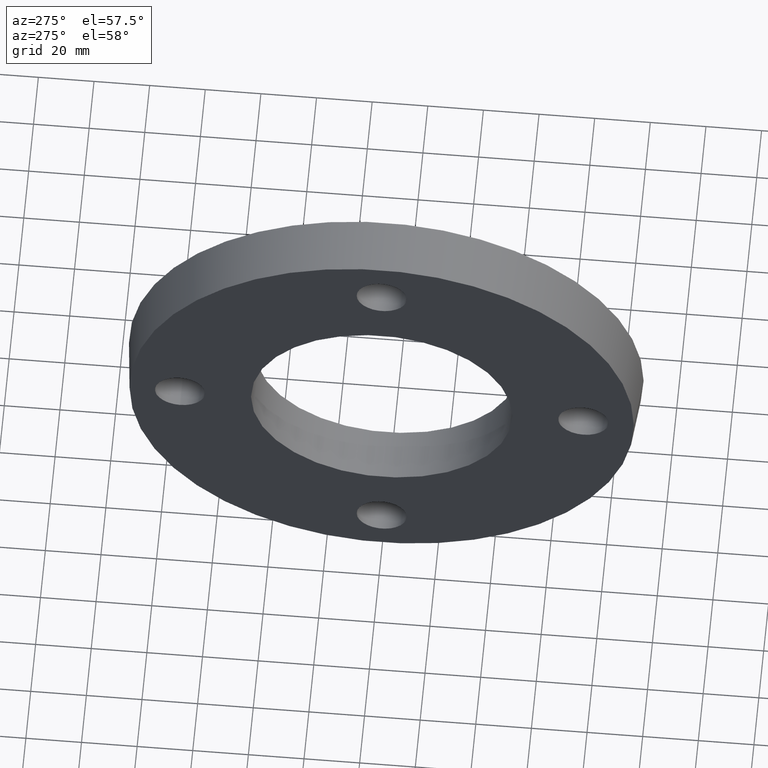
[diagram: clean part render]
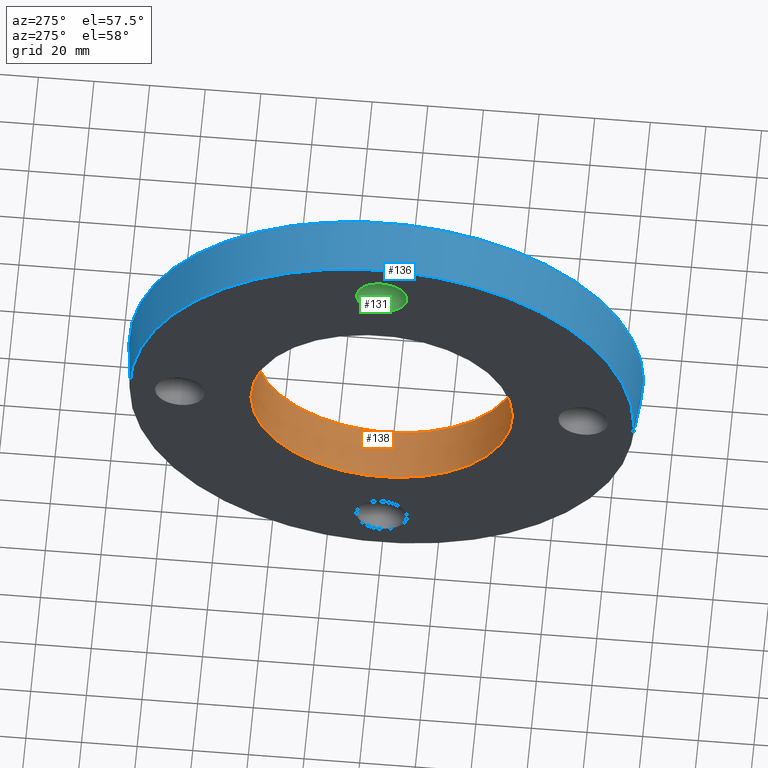
[diagram: same view with three faces highlighted in distinct colors, each labeled with its STEP entity id]
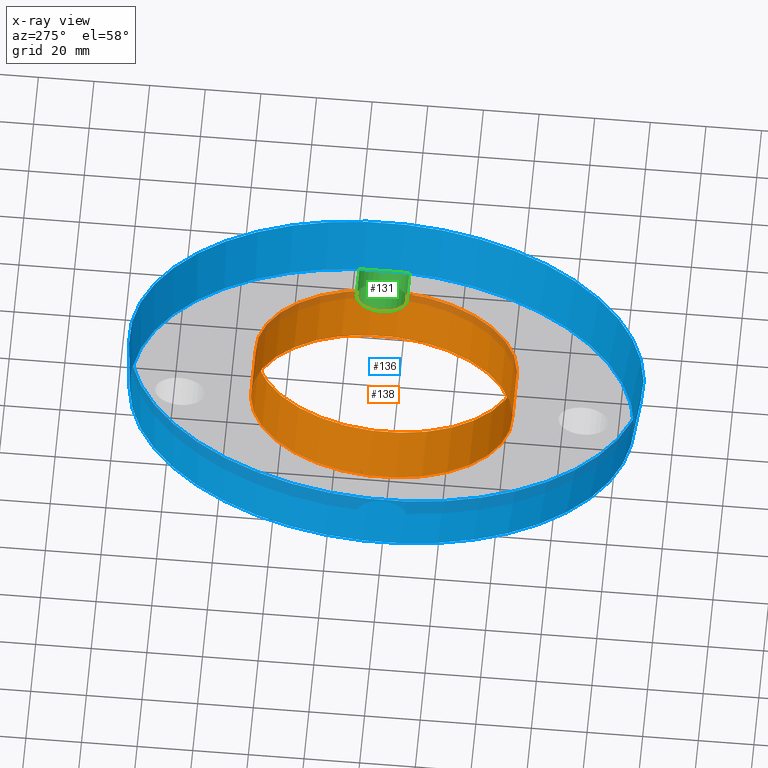
[diagram: x-ray of the same camera — body ghosted, the three highlighted faces saturated]
A machine part, auxiliary view with three faces highlighted in distinct colors.
The next image is the same camera in x-ray (body ghosted, the three faces saturated) — at least one of them is partly hidden behind the body in this view.
Their STEP definitions:

[orange] entity #138 — the highlighted cylindrical surface (bore or boss wall) has radius 47 mm, axis along (-1, 0, 0).
#33=FACE_BOUND('',#65,.T.);
#41=FACE_OUTER_BOUND('',#64,.T.);
#64=EDGE_LOOP('',(#124));
#65=EDGE_LOOP('',(#125));
#75=CIRCLE('',#155,47.);
#77=CIRCLE('',#159,47.);
#87=VERTEX_POINT('',#227);
#89=VERTEX_POINT('',#233);
#99=EDGE_CURVE('',#87,#87,#75,.T.);
#101=EDGE_CURVE('',#89,#89,#77,.T.);
#124=ORIENTED_EDGE('',*,*,#99,.F.);
#125=ORIENTED_EDGE('',*,*,#101,.T.);
#130=CYLINDRICAL_SURFACE('',#160,47.);
#138=ADVANCED_FACE('',(#41,#33),#130,.F.);
#155=AXIS2_PLACEMENT_3D('',#228,#191,#192);
#159=AXIS2_PLACEMENT_3D('',#234,#199,#200);
#160=AXIS2_PLACEMENT_3D('',#235,#201,#202);
#191=DIRECTION('center_axis',(-1.,0.,0.));
#192=DIRECTION('ref_axis',(0.,0.,1.));
#199=DIRECTION('center_axis',(-1.,0.,0.));
#200=DIRECTION('ref_axis',(0.,0.,1.));
#201=DIRECTION('center_axis',(-1.,0.,0.));
#202=DIRECTION('ref_axis',(0.,-1.,0.));
#227=CARTESIAN_POINT('',(9.5,-47.,0.));
#228=CARTESIAN_POINT('Origin',(9.5,0.,0.));
#233=CARTESIAN_POINT('',(-9.5,-47.,0.));
#234=CARTESIAN_POINT('Origin',(-9.5,0.,0.));
#235=CARTESIAN_POINT('Origin',(0.,0.,0.));

[blue] entity #136 — the highlighted conical surface has half-angle 5.561 deg.
#15=CONICAL_SURFACE('',#156,91.575,5.56126905673246);
#27=FACE_BOUND('',#57,.T.);
#39=FACE_OUTER_BOUND('',#56,.T.);
#56=EDGE_LOOP('',(#116));
#57=EDGE_LOOP('',(#117));
#74=CIRCLE('',#154,92.5);
#76=CIRCLE('',#157,90.65);
#86=VERTEX_POINT('',#225);
#88=VERTEX_POINT('',#230);
#98=EDGE_CURVE('',#86,#86,#74,.T.);
#100=EDGE_CURVE('',#88,#88,#76,.T.);
#116=ORIENTED_EDGE('',*,*,#100,.F.);
#117=ORIENTED_EDGE('',*,*,#98,.T.);
#136=ADVANCED_FACE('',(#39,#27),#15,.T.);
#154=AXIS2_PLACEMENT_3D('',#226,#189,#190);
#156=AXIS2_PLACEMENT_3D('',#229,#193,#194);
#157=AXIS2_PLACEMENT_3D('',#231,#195,#196);
#189=DIRECTION('center_axis',(-1.,0.,0.));
#190=DIRECTION('ref_axis',(0.,0.,1.));
#193=DIRECTION('center_axis',(1.,0.,0.));
#194=DIRECTION('ref_axis',(0.,-1.,0.));
#195=DIRECTION('center_axis',(-1.,0.,0.));
#196=DIRECTION('ref_axis',(0.,0.,1.));
#225=CARTESIAN_POINT('',(9.5,-92.5,0.));
#226=CARTESIAN_POINT('Origin',(9.5,0.,0.));
#229=CARTESIAN_POINT('Origin',(5.55111512312578E-15,0.,0.));
#230=CARTESIAN_POINT('',(-9.49999999999999,-90.65,0.));
#231=CARTESIAN_POINT('Origin',(-9.49999999999999,0.,0.));

[green] entity #131 — the highlighted cylindrical surface (bore or boss wall) has radius 9 mm, axis along (-1, 0, 0).
#18=FACE_BOUND('',#43,.T.);
#34=FACE_OUTER_BOUND('',#42,.T.);
#42=EDGE_LOOP('',(#102));
#43=EDGE_LOOP('',(#103));
#66=CIRCLE('',#142,9.);
#67=CIRCLE('',#143,9.);
#78=VERTEX_POINT('',#205);
#79=VERTEX_POINT('',#207);
#90=EDGE_CURVE('',#78,#78,#66,.T.);
#91=EDGE_CURVE('',#79,#79,#67,.T.);
#102=ORIENTED_EDGE('',*,*,#90,.F.);
#103=ORIENTED_EDGE('',*,*,#91,.F.);
#126=CYLINDRICAL_SURFACE('',#141,9.);
#131=ADVANCED_FACE('',(#34,#18),#126,.F.);
#141=AXIS2_PLACEMENT_3D('',#204,#163,#164);
#142=AXIS2_PLACEMENT_3D('',#206,#165,#166);
#143=AXIS2_PLACEMENT_3D('',#208,#167,#168);
#163=DIRECTION('center_axis',(-1.,0.,0.));
#164=DIRECTION('ref_axis',(0.,-1.,-1.83697019872103E-16));
#165=DIRECTION('center_axis',(1.,0.,0.));
#166=DIRECTION('ref_axis',(0.,-1.,-1.83697019872103E-16));
#167=DIRECTION('center_axis',(-1.,0.,0.));
#168=DIRECTION('ref_axis',(0.,-1.,-1.83697019872103E-16));
#204=CARTESIAN_POINT('Origin',(9.5,-1.33180339407275E-14,72.5));
#205=CARTESIAN_POINT('',(-9.5,8.99999999999999,72.5));
#206=CARTESIAN_POINT('Origin',(-9.5,-1.33180339407275E-14,72.5));
#207=CARTESIAN_POINT('',(9.5,8.99999999999999,72.5));
#208=CARTESIAN_POINT('Origin',(9.5,-1.33180339407275E-14,72.5));